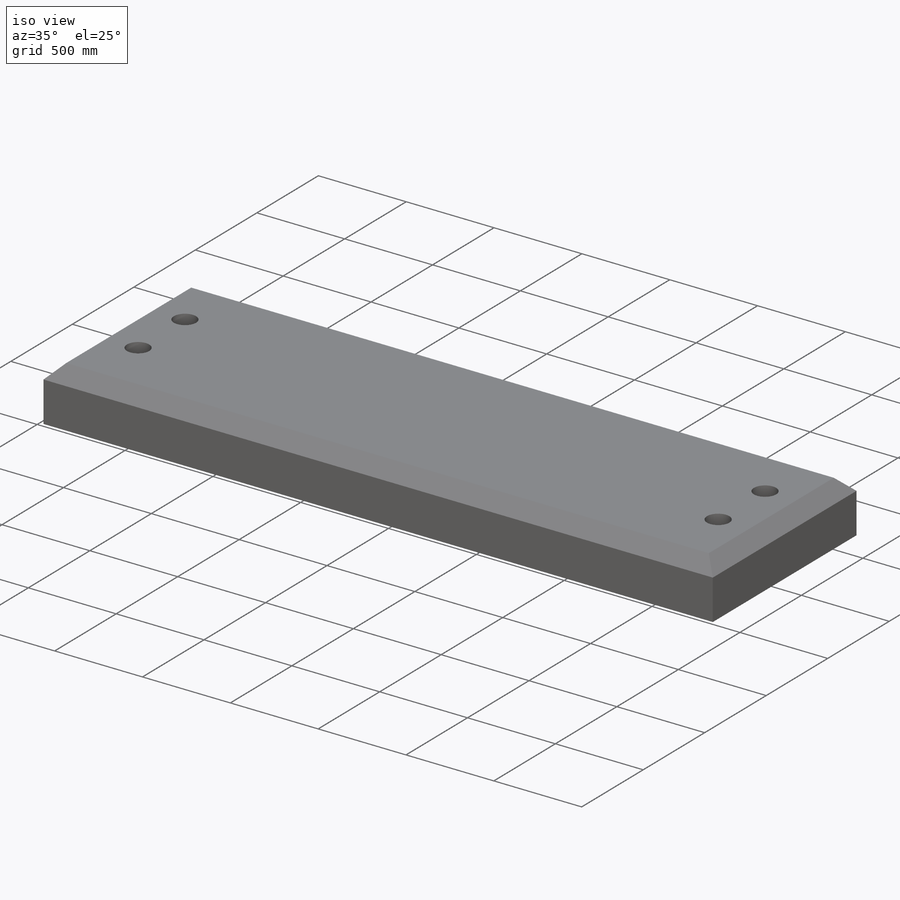
[diagram: iso view]
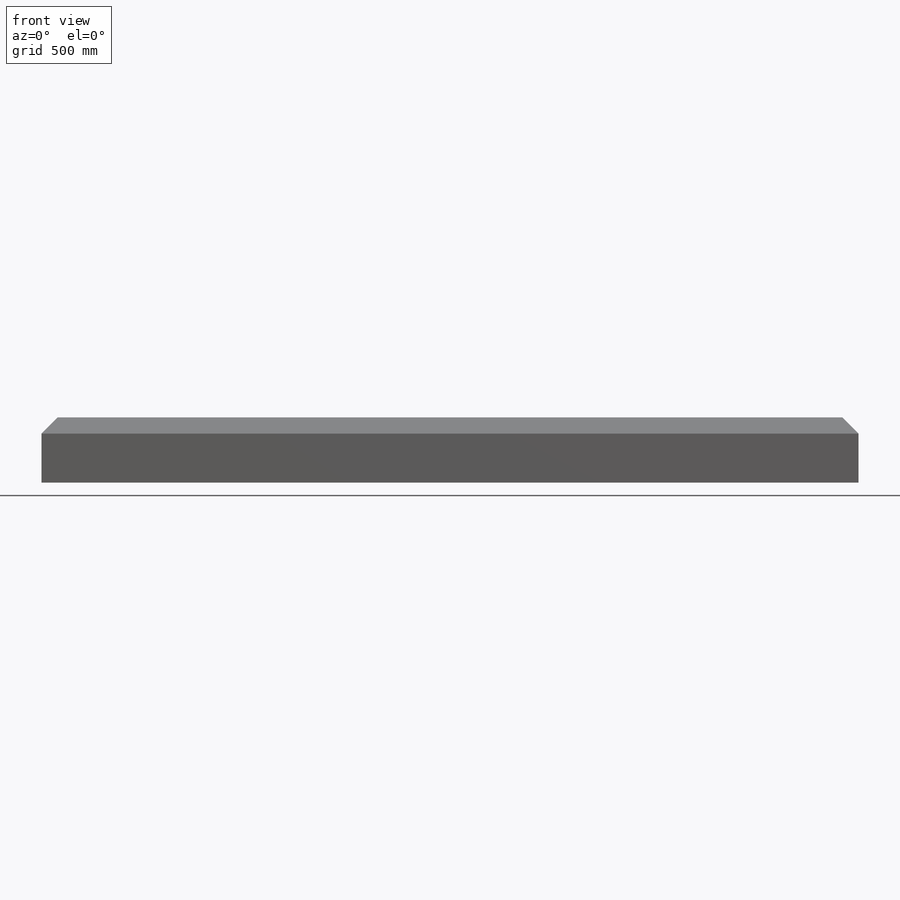
[diagram: front view]
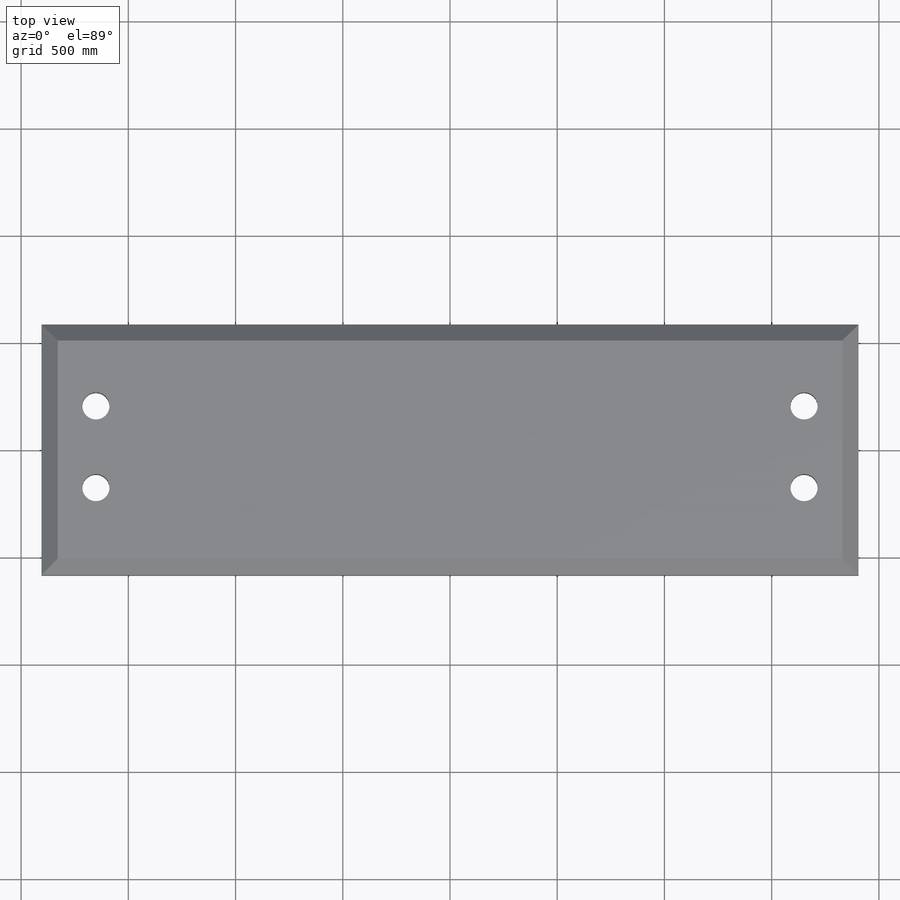
[diagram: top view]
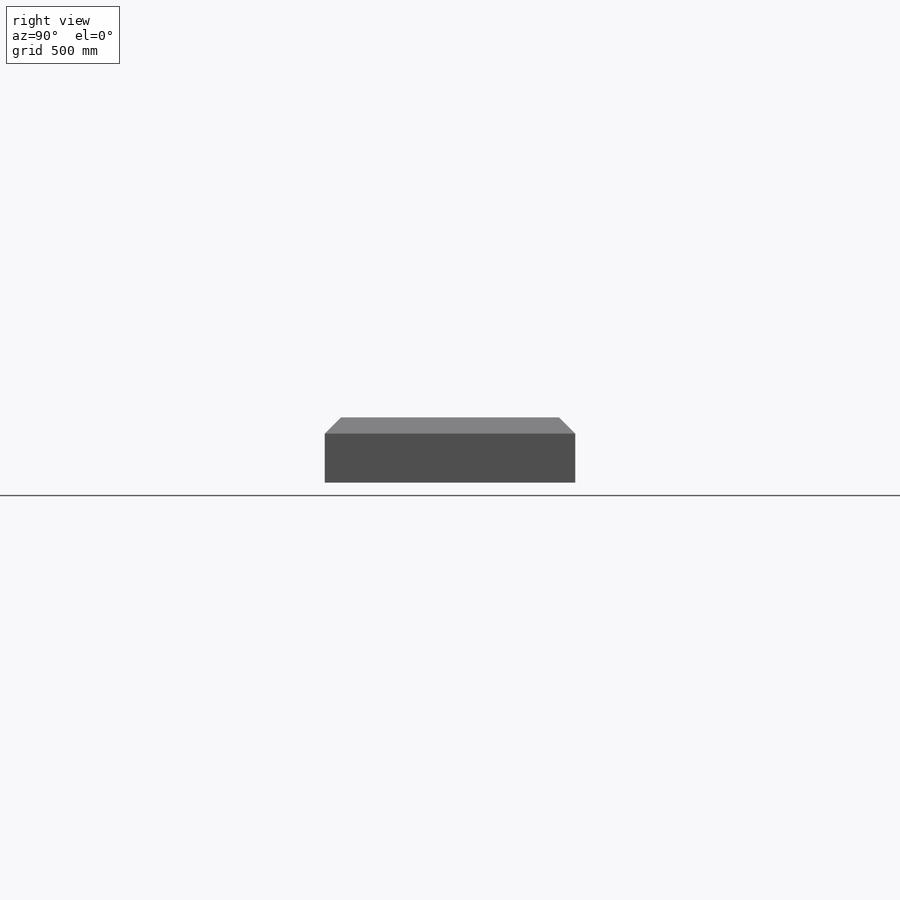
[diagram: right view]
SOLIDWORKS PART (.sldprt)
format: sldprt  version: not decoded by parser v0  size: 152,064 bytes
history: native  units: mm
features: sketch x2, chamfer x2, material x1, extrude x1, cut_extrude x1 (+16 scaffold rows collapsed)
feature tree (23):
  scaffold x16  (default folders/planes/origin — collapsed)
  material  "Material <not specified>"
  sketch  "Sketch1"  dims[D1=3810.0mm D2=1168.4mm]
  extrude  "Boss-Extrude1"  Depth=304.8mm
  chamfer  "Chamfer1"  Distance=76.2mm Angle=45deg
  sketch  "Sketch3"  dims[D5=127.0mm D6=127.0mm D7=127.0mm D8=127.0mm D1=254.0mm D2=3556.0mm D3=406.4mm D4=787.4mm]
  cut_extrude  "Cut-Extrude1"  [1 undecoded]
  chamfer  "Chamfer2"  Distance=38.1mm Angle=45deg
decode coverage: 5 of 6 modeling features carry decoded parameters
note: 1 parameter value undecoded
note: suppression state not decoded; provenance and decode notes live in map.json
